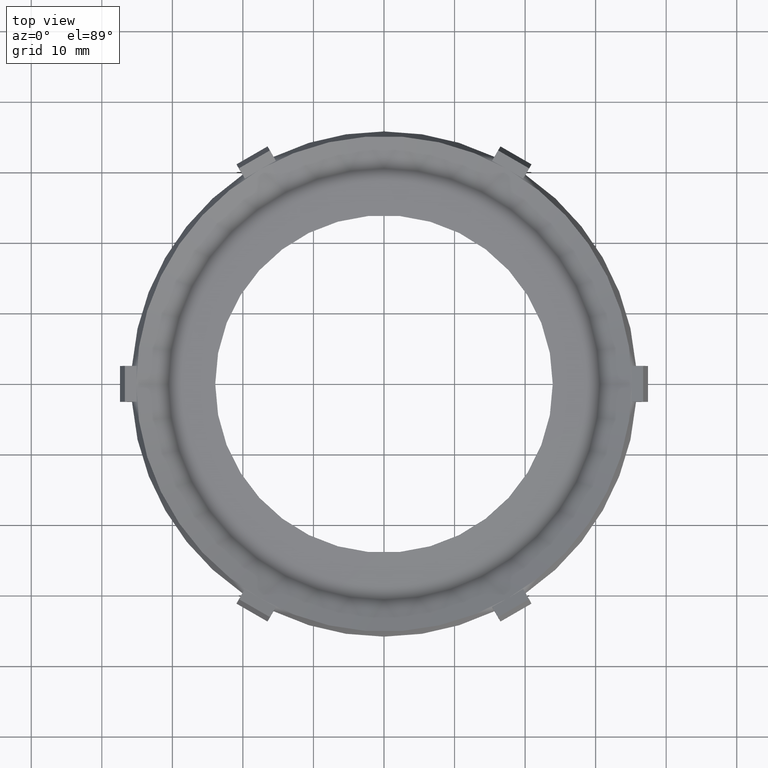
[diagram: clean part render]
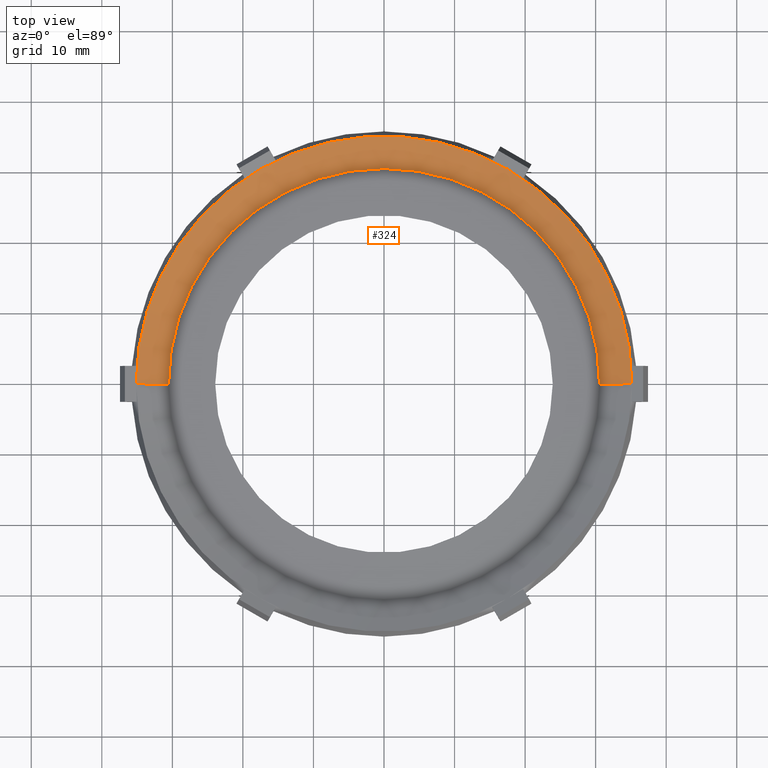
[diagram: same view with one face highlighted and labeled with its STEP entity id]
A machine part, top view. The second image highlights one B-rep face of the part: STEP entity #324.
In plain terms, the highlighted conical surface has half-angle 70 deg.
Its self-contained STEP definition (entity closure, byte-faithful):
#2 = VERTEX_POINT ( 'NONE', #727 ) ;
#3 = VERTEX_POINT ( 'NONE', #726 ) ;
#6 = EDGE_CURVE ( 'NONE', #2, #45, #848, .T. ) ;
#10 = VERTEX_POINT ( 'NONE', #756 ) ;
#18 = EDGE_CURVE ( 'NONE', #3, #10, #781, .T. ) ;
#45 = VERTEX_POINT ( 'NONE', #915 ) ;
#103 = EDGE_CURVE ( 'NONE', #426, #432, #968, .T. ) ;
#200 = EDGE_CURVE ( 'NONE', #432, #10, #1184, .T. ) ;
#268 = EDGE_CURVE ( 'NONE', #45, #426, #1289, .T. ) ;
#281 = EDGE_LOOP ( 'NONE', ( #282, #283, #471, #294, #295, #394 ) ) ;
#282 = ORIENTED_EDGE ( 'NONE', *, *, #6, .F. ) ;
#283 = ORIENTED_EDGE ( 'NONE', *, *, #489, .T. ) ;
#294 = ORIENTED_EDGE ( 'NONE', *, *, #200, .F. ) ;
#295 = ORIENTED_EDGE ( 'NONE', *, *, #103, .F. ) ;
#324 = ADVANCED_FACE ( 'NONE', ( #1370 ), #1361, .F. ) ;
#394 = ORIENTED_EDGE ( 'NONE', *, *, #268, .F. ) ;
#426 = VERTEX_POINT ( 'NONE', #1544 ) ;
#432 = VERTEX_POINT ( 'NONE', #1567 ) ;
#471 = ORIENTED_EDGE ( 'NONE', *, *, #18, .T. ) ;
#489 = EDGE_CURVE ( 'NONE', #2, #3, #1733, .T. ) ;
#726 = CARTESIAN_POINT ( 'NONE',  ( 1.202889546860454800, 0.0000000000000000000, -0.005514642167915289500 ) ) ;
#727 = CARTESIAN_POINT ( 'NONE',  ( -1.202889546860454800, 1.583280753875847200E-016, -0.005514642167915289500 ) ) ;
#756 = CARTESIAN_POINT ( 'NONE',  ( 1.382889546860455000, 0.0000000000000000000, 0.05999999999999990800 ) ) ;
#778 = DIRECTION ( 'NONE',  ( 0.9396926207859105400, 0.0000000000000000000, 0.3420201433256630000 ) ) ;
#779 = VECTOR ( 'NONE', #778, 39.37007874015748900 ) ;
#780 = CARTESIAN_POINT ( 'NONE',  ( 1.202889546860454800, 0.0000000000000000000, -0.005514642167915289500 ) ) ;
#781 = LINE ( 'NONE', #780, #779 ) ;
#845 = DIRECTION ( 'NONE',  ( -0.9396926207859105400, 1.150753554054427600E-016, 0.3420201433256630000 ) ) ;
#846 = VECTOR ( 'NONE', #845, 39.37007874015748900 ) ;
#847 = CARTESIAN_POINT ( 'NONE',  ( -1.202889546860454800, 1.473066182031833000E-016, -0.005514642167915289500 ) ) ;
#848 = LINE ( 'NONE', #847, #846 ) ;
#915 = CARTESIAN_POINT ( 'NONE',  ( -1.382889546860455000, -9.656671686230743400E-015, 0.05999999999999997700 ) ) ;
#964 = DIRECTION ( 'NONE',  ( -1.000000000000000000, 0.0000000000000000000, 0.0000000000000000000 ) ) ;
#965 = DIRECTION ( 'NONE',  ( -0.0000000000000000000, -0.0000000000000000000, -1.000000000000000000 ) ) ;
#966 = CARTESIAN_POINT ( 'NONE',  ( 0.0000000000000000000, 0.0000000000000000000, 0.05999999999999990800 ) ) ;
#967 = AXIS2_PLACEMENT_3D ( 'NONE', #966, #965, #964 ) ;
#968 = CIRCLE ( 'NONE', #967, 1.382889546860454700 ) ;
#1180 = DIRECTION ( 'NONE',  ( -1.000000000000000000, 0.0000000000000000000, 0.0000000000000000000 ) ) ;
#1181 = DIRECTION ( 'NONE',  ( -0.0000000000000000000, -0.0000000000000000000, -1.000000000000000000 ) ) ;
#1182 = CARTESIAN_POINT ( 'NONE',  ( 0.0000000000000000000, 0.0000000000000000000, 0.05999999999999990800 ) ) ;
#1183 = AXIS2_PLACEMENT_3D ( 'NONE', #1182, #1181, #1180 ) ;
#1184 = CIRCLE ( 'NONE', #1183, 1.382889546860454700 ) ;
#1288 = DIRECTION ( 'NONE',  ( -1.000000000000000000, 0.0000000000000000000, 0.0000000000000000000 ) ) ;
#1289 = CIRCLE ( 'NONE', #1312, 1.382889546860454700 ) ;
#1310 = DIRECTION ( 'NONE',  ( -0.0000000000000000000, -0.0000000000000000000, -1.000000000000000000 ) ) ;
#1311 = CARTESIAN_POINT ( 'NONE',  ( 0.0000000000000000000, 0.0000000000000000000, 0.05999999999999990800 ) ) ;
#1312 = AXIS2_PLACEMENT_3D ( 'NONE', #1311, #1310, #1288 ) ;
#1357 = CARTESIAN_POINT ( 'NONE',  ( 0.0000000000000000000, 0.0000000000000000000, -0.005514642167915289500 ) ) ;
#1359 = DIRECTION ( 'NONE',  ( 1.000000000000000000, 0.0000000000000000000, 0.0000000000000000000 ) ) ;
#1360 = AXIS2_PLACEMENT_3D ( 'NONE', #1357, #1378, #1359 ) ;
#1361 = CONICAL_SURFACE ( 'NONE', #1360, 1.202889546860454800, 1.221730476396036800 ) ;
#1370 = FACE_OUTER_BOUND ( 'NONE', #281, .T. ) ;
#1378 = DIRECTION ( 'NONE',  ( 0.0000000000000000000, 0.0000000000000000000, 1.000000000000000000 ) ) ;
#1544 = CARTESIAN_POINT ( 'NONE',  ( -0.6914447734302329200, 1.197617478209101600, 0.05999999999999990800 ) ) ;
#1567 = CARTESIAN_POINT ( 'NONE',  ( 0.6914447734302249200, 1.197617478209107100, 0.06000000000000010900 ) ) ;
#1722 = AXIS2_PLACEMENT_3D ( 'NONE', #1751, #1750, #1764 ) ;
#1733 = CIRCLE ( 'NONE', #1722, 1.202889546860454800 ) ;
#1750 = DIRECTION ( 'NONE',  ( -0.0000000000000000000, -0.0000000000000000000, -1.000000000000000000 ) ) ;
#1751 = CARTESIAN_POINT ( 'NONE',  ( 0.0000000000000000000, 0.0000000000000000000, -0.005514642167915289500 ) ) ;
#1764 = DIRECTION ( 'NONE',  ( -1.000000000000000000, 0.0000000000000000000, 0.0000000000000000000 ) ) ;